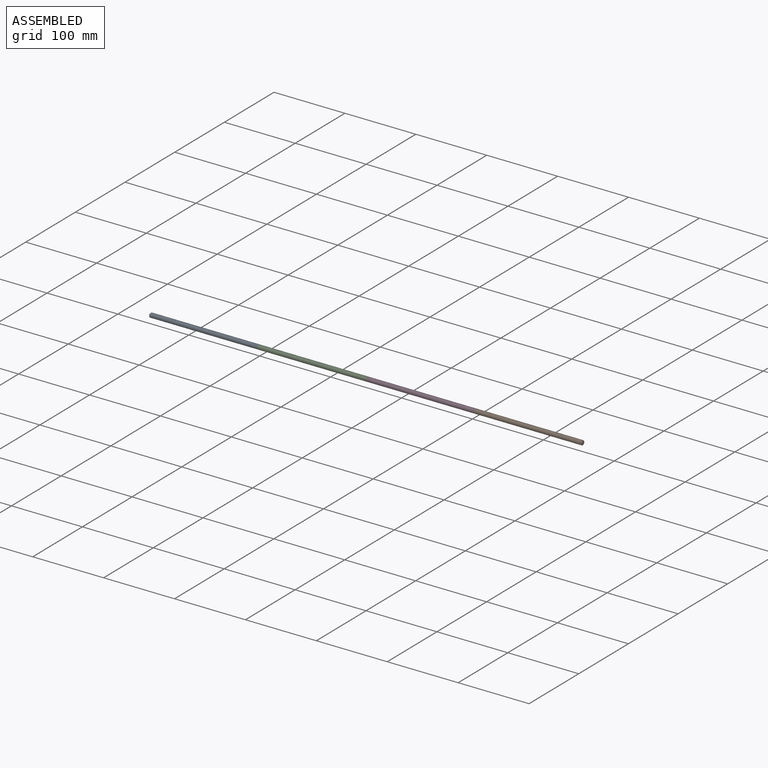
[diagram: assembled view]
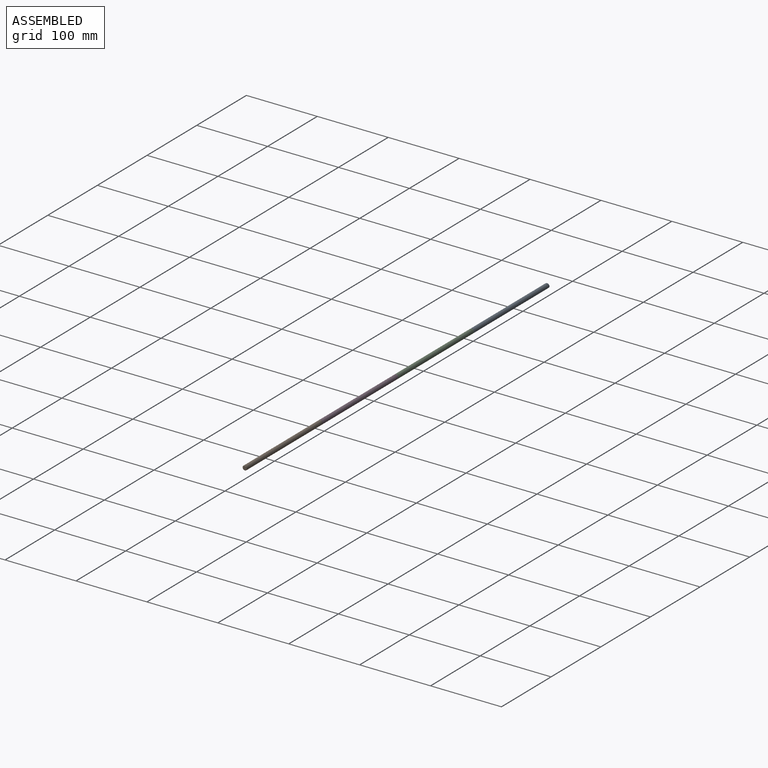
[diagram: assembled view, second angle]
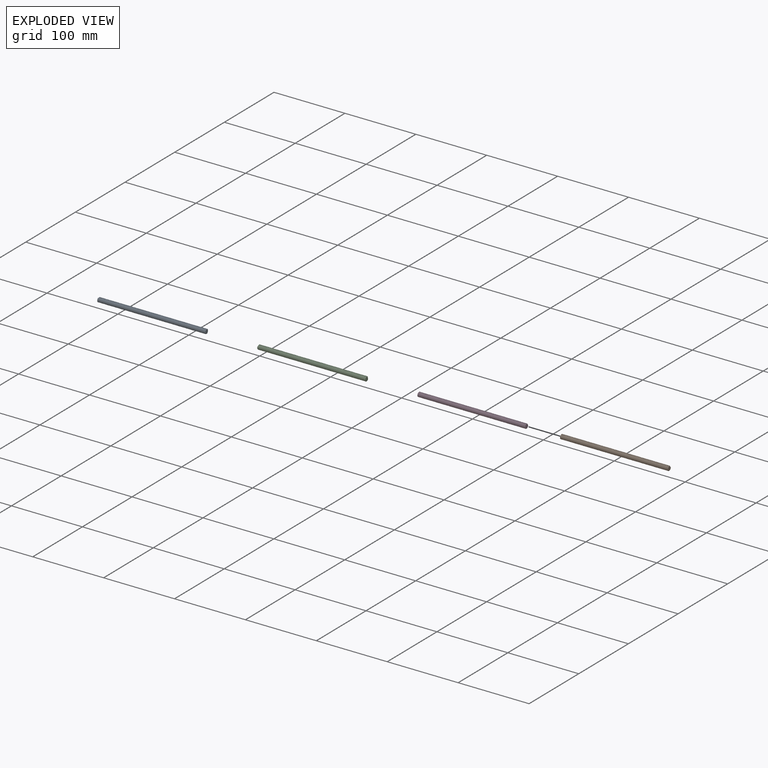
[diagram: exploded view]
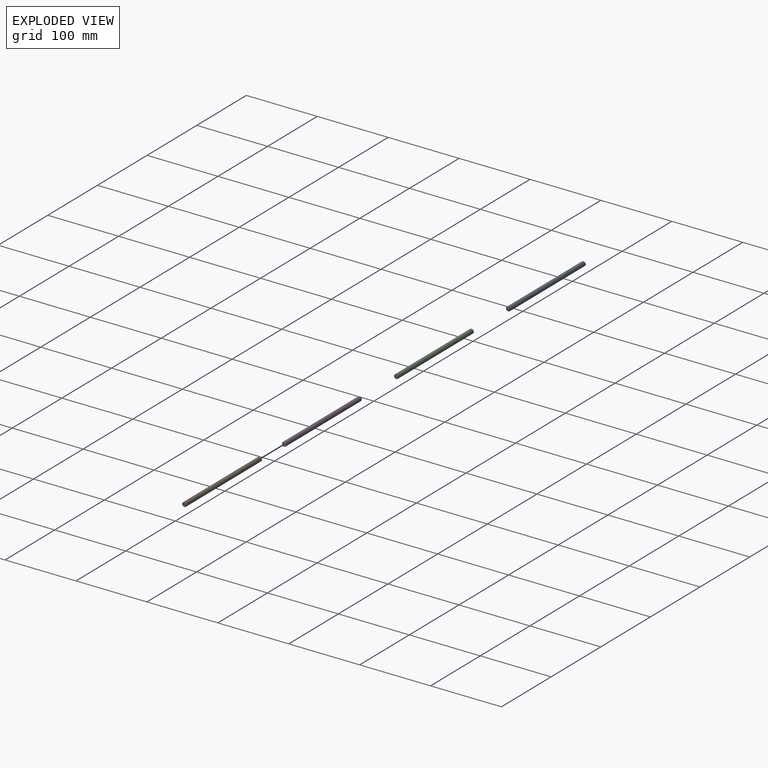
[diagram: exploded view, second angle]
ASSEMBLY  parts=4 mates=3
PART A: 8 faces, bbox 153.2x6.5x7.4 mm
  f0: cylinder r=3.17mm len=151.89mm, axis (-1,0,0), area 2176.3mm2, adj f2,f3,f6,f7
  f1: plane 5.58x5.4mm, normal (1,0,0), area 22.6mm2, adj f2,f3,f5,f7
  f2: bspline ~152.87x7.33mm, area 1376.1mm2, adj f0,f1,f4,f5,f6,f7
  f3: bspline ~153.13x7.33mm, area 1378.3mm2, adj f0,f1,f4,f5,f6,f7
  f4: plane 5.57x5.4mm, normal (-1,0,0), area 22.6mm2, adj f2,f3,f5,f6
  f5: cylinder r=2.38mm len=152.4mm, axis (1,0,0), area -1015.5mm2, adj f1,f2,f3,f4
  f6: cone r=2.92mm half-angle=45deg, axis (1,0,0), area 2.8mm2, adj f0,f2,f3,f4
  f7: cone r=2.92mm half-angle=45deg, axis (-1,0,0), area 2.8mm2, adj f0,f1,f2,f3
PART B: same geometry as A
PART C: same geometry as A
PART D: same geometry as A
PLACE A rot(axis=(-1,0,0),90deg) t=(-352.44,-2.02,-27.85)mm
PLACE B t=(104.76,-2.02,-27.85)mm
PLACE C rot(axis=(0,0,1),180deg) t=(-47.64,-2.02,-27.85)mm
PLACE D t=(-47.64,-2.02,-27.85)mm
MATE fastened B.f0 <-> D.f0  axis (-1,0,0) through (104.76,-2.02,-27.85)mm
MATE fastened A.f0 <-> C.f0  axis (1,0,0) through (-200.04,-2.02,-27.85)mm
MATE fastened C.f0 <-> D.f0  axis (1,0,0) through (-47.64,-2.02,-27.85)mm
